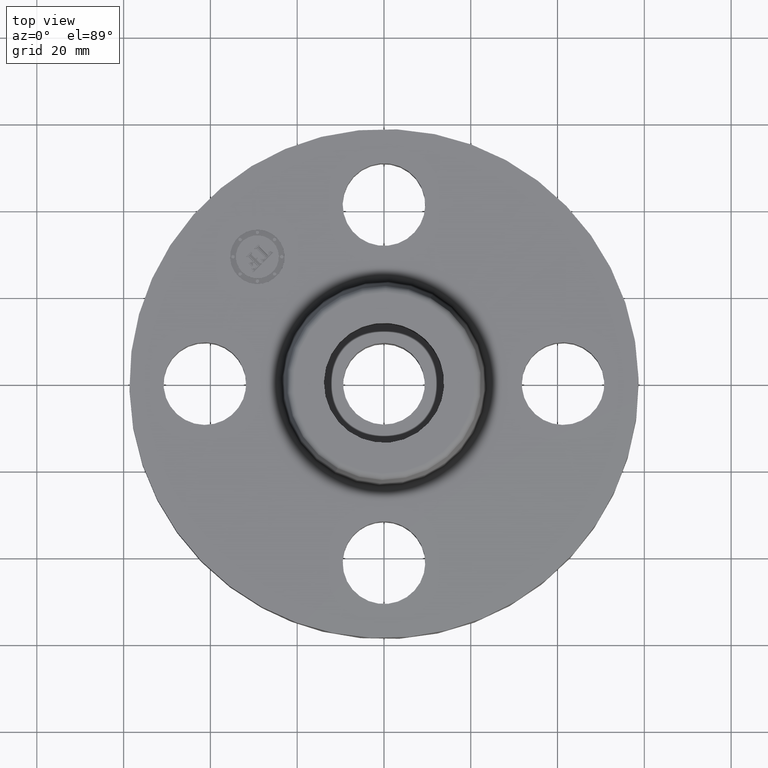
[diagram: clean part render]
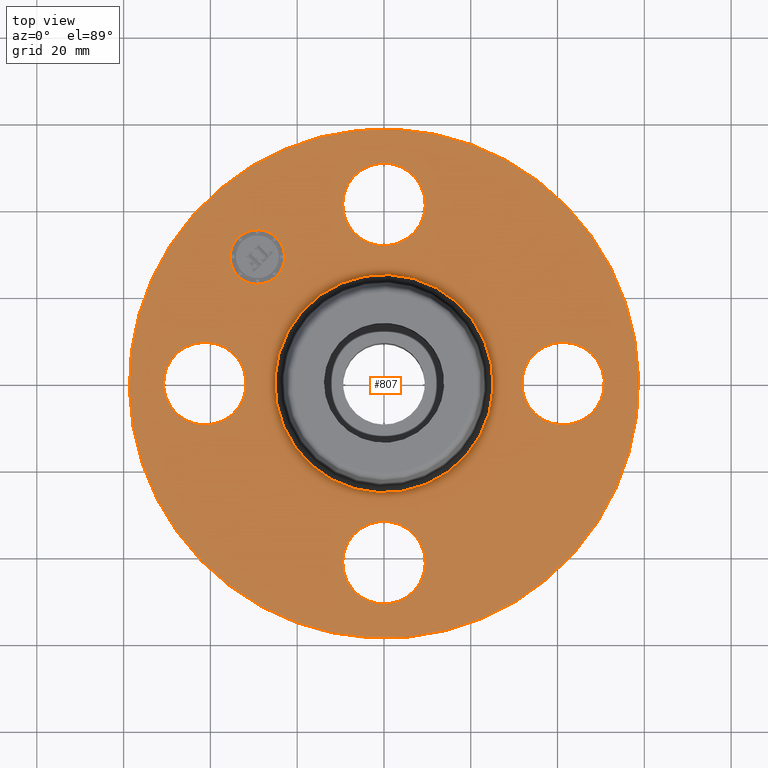
[diagram: same view with one face highlighted and labeled with its STEP entity id]
A machine part, top view. The second image highlights one B-rep face of the part: STEP entity #807.
In plain terms, the highlighted planar face has unit normal (0, 0, -1).
Its self-contained STEP definition (entity closure, byte-faithful):
#558=AXIS2_PLACEMENT_3D('Circle Axis2P3D',#556,#557,$) ;
#596=AXIS2_PLACEMENT_3D('Circle Axis2P3D',#594,#595,$) ;
#693=AXIS2_PLACEMENT_3D('Plane Axis2P3D',#690,#691,#692) ;
#697=AXIS2_PLACEMENT_3D('Circle Axis2P3D',#695,#696,$) ;
#706=AXIS2_PLACEMENT_3D('Circle Axis2P3D',#704,#705,$) ;
#715=AXIS2_PLACEMENT_3D('Circle Axis2P3D',#713,#714,$) ;
#724=AXIS2_PLACEMENT_3D('Circle Axis2P3D',#722,#723,$) ;
#737=AXIS2_PLACEMENT_3D('Circle Axis2P3D',#735,#736,$) ;
#746=AXIS2_PLACEMENT_3D('Circle Axis2P3D',#744,#745,$) ;
#755=AXIS2_PLACEMENT_3D('Circle Axis2P3D',#753,#754,$) ;
#764=AXIS2_PLACEMENT_3D('Circle Axis2P3D',#762,#763,$) ;
#773=AXIS2_PLACEMENT_3D('Circle Axis2P3D',#771,#772,$) ;
#782=AXIS2_PLACEMENT_3D('Circle Axis2P3D',#780,#781,$) ;
#791=AXIS2_PLACEMENT_3D('Circle Axis2P3D',#789,#790,$) ;
#800=AXIS2_PLACEMENT_3D('Circle Axis2P3D',#798,#799,$) ;
#556=CARTESIAN_POINT('Axis2P3D Location',(0.,0.,0.560000000002)) ;
#560=CARTESIAN_POINT('Vertex',(0.474797153847,0.869110360421,0.560000000002)) ;
#562=CARTESIAN_POINT('Vertex',(-0.474797153847,-0.869110360421,0.560000000002)) ;
#594=CARTESIAN_POINT('Axis2P3D Location',(0.,0.,0.560000000002)) ;
#690=CARTESIAN_POINT('Axis2P3D Location',(0.,2.31000000001,0.560000000002)) ;
#695=CARTESIAN_POINT('Axis2P3D Location',(-3.08543392061E-011,3.97540268421E-012,0.560000000002)) ;
#699=CARTESIAN_POINT('Vertex',(1.10747299418,2.02721571798,0.559999999969)) ;
#701=CARTESIAN_POINT('Vertex',(-1.10747299418,-2.02721571798,0.559999999969)) ;
#704=CARTESIAN_POINT('Axis2P3D Location',(-5.59482469102E-016,-1.28798459212E-011,0.560000000002)) ;
#713=CARTESIAN_POINT('Axis2P3D Location',(-1.74838271595E-017,1.625,0.560000000002)) ;
#717=CARTESIAN_POINT('Vertex',(-0.32909346071,1.80478457699,0.559999999987)) ;
#719=CARTESIAN_POINT('Vertex',(0.329093460698,1.44521542303,0.560000000002)) ;
#722=CARTESIAN_POINT('Axis2P3D Location',(1.74838271595E-017,1.625,0.560000000002)) ;
#735=CARTESIAN_POINT('Axis2P3D Location',(1.62500000001,-1.287956618E-011,0.560000000002)) ;
#739=CARTESIAN_POINT('Vertex',(1.44521542304,-0.32909346071,0.560000000002)) ;
#741=CARTESIAN_POINT('Vertex',(1.80478457699,0.32909346071,0.559999999987)) ;
#744=CARTESIAN_POINT('Axis2P3D Location',(1.62500000001,-1.287956618E-011,0.560000000002)) ;
#753=CARTESIAN_POINT('Axis2P3D Location',(-1.74838271595E-017,-1.62500000003,0.560000000002)) ;
#757=CARTESIAN_POINT('Vertex',(-0.329093460698,-1.44521542305,0.560000000002)) ;
#759=CARTESIAN_POINT('Vertex',(0.32909346071,-1.80478457699,0.559999999987)) ;
#762=CARTESIAN_POINT('Axis2P3D Location',(1.74838271595E-017,-1.62500000003,0.560000000002)) ;
#771=CARTESIAN_POINT('Axis2P3D Location',(-1.62500000001,-1.287956618E-011,0.560000000002)) ;
#775=CARTESIAN_POINT('Vertex',(-1.44521542304,0.329093460685,0.560000000002)) ;
#777=CARTESIAN_POINT('Vertex',(-1.80478457699,-0.32909346071,0.559999999987)) ;
#780=CARTESIAN_POINT('Axis2P3D Location',(-1.62500000001,-1.287956618E-011,0.560000000002)) ;
#789=CARTESIAN_POINT('Axis2P3D Location',(-1.14904851942,1.14904851941,0.560000000002)) ;
#793=CARTESIAN_POINT('Vertex',(-1.32405744778,0.974039591059,0.560000000002)) ;
#795=CARTESIAN_POINT('Vertex',(-0.974039591072,1.32405744776,0.560000000002)) ;
#798=CARTESIAN_POINT('Axis2P3D Location',(-1.14904851942,1.14904851941,0.560000000002)) ;
#557=DIRECTION('Axis2P3D Direction',(-0.,0.,-0.0393700787402)) ;
#595=DIRECTION('Axis2P3D Direction',(-0.,0.,-0.0393700787402)) ;
#691=DIRECTION('Axis2P3D Direction',(0.,0.,-0.0393700787402)) ;
#692=DIRECTION('Axis2P3D XDirection',(0.0393700787402,0.,0.)) ;
#696=DIRECTION('Axis2P3D Direction',(0.,0.,-0.0393700787402)) ;
#705=DIRECTION('Axis2P3D Direction',(0.,0.,-0.0393700787402)) ;
#714=DIRECTION('Axis2P3D Direction',(0.,0.,-0.0393700787402)) ;
#723=DIRECTION('Axis2P3D Direction',(0.,0.,-0.0393700787402)) ;
#736=DIRECTION('Axis2P3D Direction',(0.,0.,-0.0393700787402)) ;
#745=DIRECTION('Axis2P3D Direction',(0.,0.,-0.0393700787402)) ;
#754=DIRECTION('Axis2P3D Direction',(0.,0.,-0.0393700787402)) ;
#763=DIRECTION('Axis2P3D Direction',(0.,0.,-0.0393700787402)) ;
#772=DIRECTION('Axis2P3D Direction',(0.,0.,-0.0393700787402)) ;
#781=DIRECTION('Axis2P3D Direction',(0.,0.,-0.0393700787402)) ;
#790=DIRECTION('Axis2P3D Direction',(0.,0.,-0.0393700787402)) ;
#799=DIRECTION('Axis2P3D Direction',(0.,0.,-0.0393700787402)) ;
#710=ORIENTED_EDGE('',*,*,#703,.F.) ;
#711=ORIENTED_EDGE('',*,*,#708,.F.) ;
#728=ORIENTED_EDGE('',*,*,#721,.T.) ;
#729=ORIENTED_EDGE('',*,*,#726,.T.) ;
#732=ORIENTED_EDGE('',*,*,#598,.T.) ;
#733=ORIENTED_EDGE('',*,*,#564,.T.) ;
#750=ORIENTED_EDGE('',*,*,#743,.T.) ;
#751=ORIENTED_EDGE('',*,*,#748,.T.) ;
#768=ORIENTED_EDGE('',*,*,#761,.T.) ;
#769=ORIENTED_EDGE('',*,*,#766,.T.) ;
#786=ORIENTED_EDGE('',*,*,#779,.T.) ;
#787=ORIENTED_EDGE('',*,*,#784,.T.) ;
#804=ORIENTED_EDGE('',*,*,#797,.T.) ;
#805=ORIENTED_EDGE('',*,*,#802,.T.) ;
#730=FACE_BOUND('',#727,.T.) ;
#734=FACE_BOUND('',#731,.T.) ;
#752=FACE_BOUND('',#749,.T.) ;
#770=FACE_BOUND('',#767,.T.) ;
#788=FACE_BOUND('',#785,.T.) ;
#806=FACE_BOUND('',#803,.T.) ;
#807=ADVANCED_FACE('PartBody',(#712,#730,#734,#752,#770,#788,#806),#694,.F.) ;
#559=CIRCLE('generated circle',#558,0.990345977875) ;
#597=CIRCLE('generated circle',#596,0.990345977875) ;
#698=CIRCLE('generated circle',#697,2.31000000004) ;
#707=CIRCLE('generated circle',#706,2.31000000004) ;
#716=CIRCLE('generated circle',#715,0.374999999988) ;
#725=CIRCLE('generated circle',#724,0.374999999988) ;
#738=CIRCLE('generated circle',#737,0.374999999988) ;
#747=CIRCLE('generated circle',#746,0.374999999988) ;
#756=CIRCLE('generated circle',#755,0.374999999988) ;
#765=CIRCLE('generated circle',#764,0.374999999988) ;
#774=CIRCLE('generated circle',#773,0.374999999988) ;
#783=CIRCLE('generated circle',#782,0.374999999988) ;
#792=CIRCLE('generated circle',#791,0.247500000012) ;
#801=CIRCLE('generated circle',#800,0.247500000012) ;
#564=EDGE_CURVE('',#561,#563,#559,.T.) ;
#598=EDGE_CURVE('',#563,#561,#597,.T.) ;
#703=EDGE_CURVE('',#700,#702,#698,.T.) ;
#708=EDGE_CURVE('',#702,#700,#707,.T.) ;
#721=EDGE_CURVE('',#718,#720,#716,.T.) ;
#726=EDGE_CURVE('',#720,#718,#725,.T.) ;
#743=EDGE_CURVE('',#740,#742,#738,.T.) ;
#748=EDGE_CURVE('',#742,#740,#747,.T.) ;
#761=EDGE_CURVE('',#758,#760,#756,.T.) ;
#766=EDGE_CURVE('',#760,#758,#765,.T.) ;
#779=EDGE_CURVE('',#776,#778,#774,.T.) ;
#784=EDGE_CURVE('',#778,#776,#783,.T.) ;
#797=EDGE_CURVE('',#794,#796,#792,.T.) ;
#802=EDGE_CURVE('',#796,#794,#801,.T.) ;
#709=EDGE_LOOP('',(#710,#711)) ;
#727=EDGE_LOOP('',(#728,#729)) ;
#731=EDGE_LOOP('',(#732,#733)) ;
#749=EDGE_LOOP('',(#750,#751)) ;
#767=EDGE_LOOP('',(#768,#769)) ;
#785=EDGE_LOOP('',(#786,#787)) ;
#803=EDGE_LOOP('',(#804,#805)) ;
#712=FACE_OUTER_BOUND('',#709,.T.) ;
#694=PLANE('',#693) ;
#561=VERTEX_POINT('',#560) ;
#563=VERTEX_POINT('',#562) ;
#700=VERTEX_POINT('',#699) ;
#702=VERTEX_POINT('',#701) ;
#718=VERTEX_POINT('',#717) ;
#720=VERTEX_POINT('',#719) ;
#740=VERTEX_POINT('',#739) ;
#742=VERTEX_POINT('',#741) ;
#758=VERTEX_POINT('',#757) ;
#760=VERTEX_POINT('',#759) ;
#776=VERTEX_POINT('',#775) ;
#778=VERTEX_POINT('',#777) ;
#794=VERTEX_POINT('',#793) ;
#796=VERTEX_POINT('',#795) ;